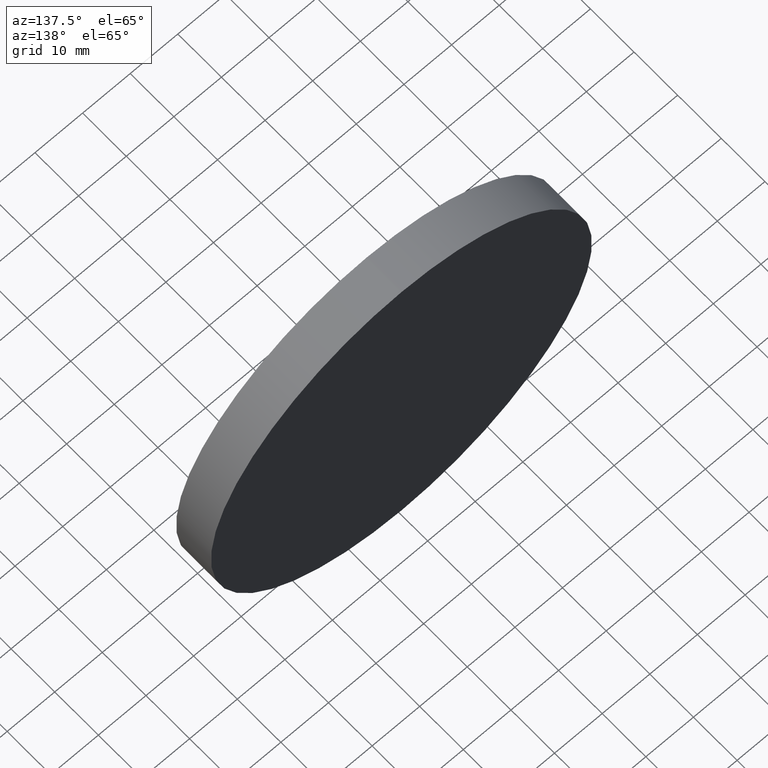
[diagram: clean part render]
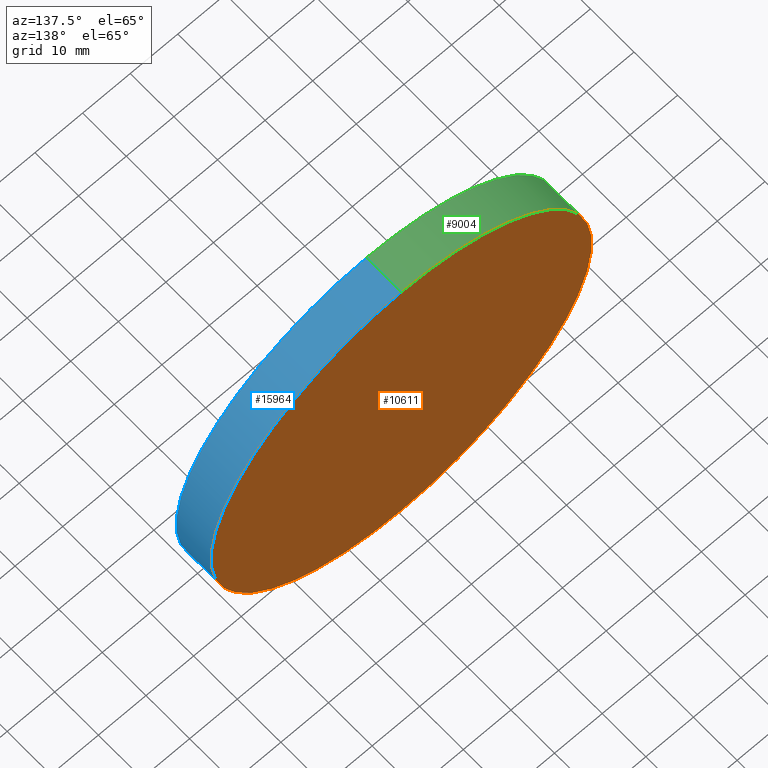
[diagram: same view with three faces highlighted in distinct colors, each labeled with its STEP entity id]
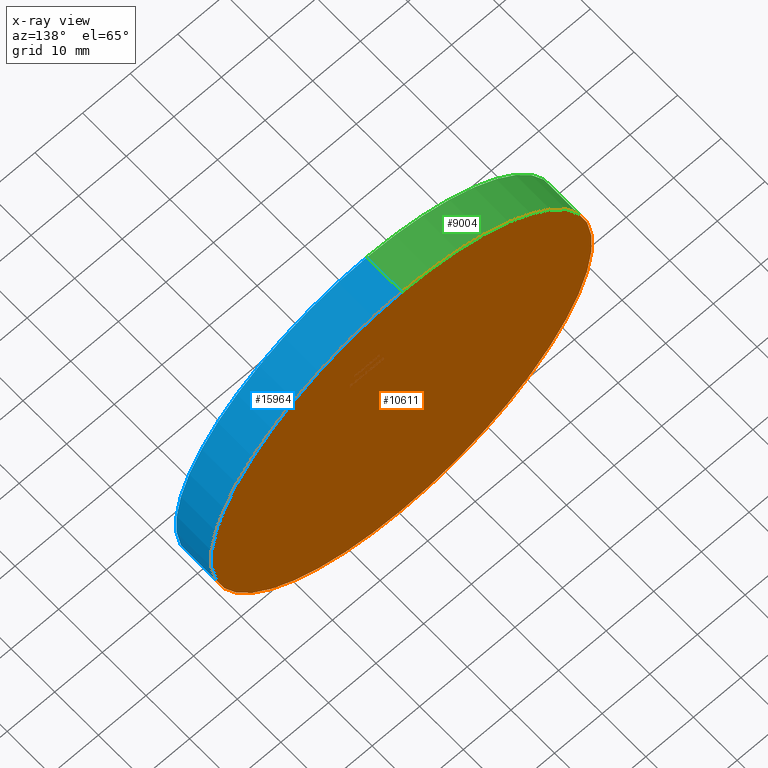
[diagram: x-ray of the same camera — body ghosted, the three highlighted faces saturated]
A machine part, auxiliary view with three faces highlighted in distinct colors.
The next image is the same camera in x-ray (body ghosted, the three faces saturated) — at least one of them is partly hidden behind the body in this view.
Their STEP definitions:

[orange] entity #10611 — the highlighted planar face has unit normal (0, 1, 0).
#1633 = AXIS2_PLACEMENT_3D ( 'NONE', #7472, #14192, #15371 ) ;
#2676 = CARTESIAN_POINT ( 'NONE',  ( 4.898587196589413026E-15, 4.000000000000000000, 40.00000000000000000 ) ) ;
#2741 = CIRCLE ( 'NONE', #5869, 40.00000000000000000 ) ;
#2856 = DIRECTION ( 'NONE',  ( 0.000000000000000000, 0.000000000000000000, 1.000000000000000000 ) ) ;
#3975 = EDGE_CURVE ( 'NONE', #10348, #11502, #15771, .T. ) ;
#4949 = PLANE ( 'NONE',  #12111 ) ;
#5392 = CARTESIAN_POINT ( 'NONE',  ( 0.000000000000000000, 4.000000000000000000, 0.000000000000000000 ) ) ;
#5746 = EDGE_CURVE ( 'NONE', #11502, #10348, #2741, .T. ) ;
#5869 = AXIS2_PLACEMENT_3D ( 'NONE', #5392, #11830, #2856 ) ;
#6704 = CARTESIAN_POINT ( 'NONE',  ( 0.000000000000000000, 4.000000000000000000, -40.00000000000000000 ) ) ;
#7472 = CARTESIAN_POINT ( 'NONE',  ( 0.000000000000000000, 4.000000000000000000, 0.000000000000000000 ) ) ;
#8308 = ORIENTED_EDGE ( 'NONE', *, *, #5746, .T. ) ;
#8626 = EDGE_LOOP ( 'NONE', ( #8682, #8308 ) ) ;
#8682 = ORIENTED_EDGE ( 'NONE', *, *, #3975, .T. ) ;
#10348 = VERTEX_POINT ( 'NONE', #6704 ) ;
#10611 = ADVANCED_FACE ( 'NONE', ( #10777 ), #4949, .T. ) ;
#10777 = FACE_OUTER_BOUND ( 'NONE', #8626, .T. ) ;
#11317 = DIRECTION ( 'NONE',  ( 0.000000000000000000, -0.000000000000000000, 1.000000000000000000 ) ) ;
#11502 = VERTEX_POINT ( 'NONE', #2676 ) ;
#11830 = DIRECTION ( 'NONE',  ( 0.000000000000000000, 1.000000000000000000, 0.000000000000000000 ) ) ;
#12111 = AXIS2_PLACEMENT_3D ( 'NONE', #12585, #14052, #11317 ) ;
#12585 = CARTESIAN_POINT ( 'NONE',  ( 0.000000000000000000, 4.000000000000000000, 0.000000000000000000 ) ) ;
#14052 = DIRECTION ( 'NONE',  ( 0.000000000000000000, 1.000000000000000000, 0.000000000000000000 ) ) ;
#14192 = DIRECTION ( 'NONE',  ( 0.000000000000000000, 1.000000000000000000, 0.000000000000000000 ) ) ;
#15371 = DIRECTION ( 'NONE',  ( 0.000000000000000000, 0.000000000000000000, 1.000000000000000000 ) ) ;
#15771 = CIRCLE ( 'NONE', #1633, 40.00000000000000000 ) ;

[blue] entity #15964 — the highlighted cylindrical surface (partial cylindrical patch) has radius 40 mm, axis along (-0, -1, -0).
#258 = DIRECTION ( 'NONE',  ( 0.000000000000000000, 0.000000000000000000, 1.000000000000000000 ) ) ;
#659 = CARTESIAN_POINT ( 'NONE',  ( 4.898587196589413026E-15, 4.000000000000000000, 40.00000000000000000 ) ) ;
#917 = VERTEX_POINT ( 'NONE', #1191 ) ;
#1191 = CARTESIAN_POINT ( 'NONE',  ( 0.000000000000000000, -4.000000000000000000, -40.00000000000000000 ) ) ;
#1212 = AXIS2_PLACEMENT_3D ( 'NONE', #5560, #14672, #258 ) ;
#2293 = EDGE_CURVE ( 'NONE', #10348, #917, #14518, .T. ) ;
#2676 = CARTESIAN_POINT ( 'NONE',  ( 4.898587196589413026E-15, 4.000000000000000000, 40.00000000000000000 ) ) ;
#2741 = CIRCLE ( 'NONE', #5869, 40.00000000000000000 ) ;
#2856 = DIRECTION ( 'NONE',  ( 0.000000000000000000, 0.000000000000000000, 1.000000000000000000 ) ) ;
#3399 = FACE_OUTER_BOUND ( 'NONE', #11378, .T. ) ;
#5392 = CARTESIAN_POINT ( 'NONE',  ( 0.000000000000000000, 4.000000000000000000, 0.000000000000000000 ) ) ;
#5560 = CARTESIAN_POINT ( 'NONE',  ( 0.000000000000000000, -4.000000000000000000, 0.000000000000000000 ) ) ;
#5658 = VERTEX_POINT ( 'NONE', #6899 ) ;
#5746 = EDGE_CURVE ( 'NONE', #11502, #10348, #2741, .T. ) ;
#5752 = VECTOR ( 'NONE', #13252, 1000.000000000000000 ) ;
#5846 = EDGE_CURVE ( 'NONE', #11502, #5658, #16118, .T. ) ;
#5869 = AXIS2_PLACEMENT_3D ( 'NONE', #5392, #11830, #2856 ) ;
#6704 = CARTESIAN_POINT ( 'NONE',  ( 0.000000000000000000, 4.000000000000000000, -40.00000000000000000 ) ) ;
#6899 = CARTESIAN_POINT ( 'NONE',  ( 4.898587196589413026E-15, -4.000000000000000000, 40.00000000000000000 ) ) ;
#6997 = CARTESIAN_POINT ( 'NONE',  ( 0.000000000000000000, 4.000000000000000000, 0.000000000000000000 ) ) ;
#7200 = ORIENTED_EDGE ( 'NONE', *, *, #5746, .F. ) ;
#7936 = ORIENTED_EDGE ( 'NONE', *, *, #15436, .T. ) ;
#8320 = DIRECTION ( 'NONE',  ( 0.000000000000000000, 0.000000000000000000, -1.000000000000000000 ) ) ;
#9307 = CIRCLE ( 'NONE', #1212, 40.00000000000000000 ) ;
#10348 = VERTEX_POINT ( 'NONE', #6704 ) ;
#11378 = EDGE_LOOP ( 'NONE', ( #7200, #11980, #7936, #15791 ) ) ;
#11502 = VERTEX_POINT ( 'NONE', #2676 ) ;
#11830 = DIRECTION ( 'NONE',  ( 0.000000000000000000, 1.000000000000000000, 0.000000000000000000 ) ) ;
#11928 = CARTESIAN_POINT ( 'NONE',  ( 0.000000000000000000, 4.000000000000000000, -40.00000000000000000 ) ) ;
#11980 = ORIENTED_EDGE ( 'NONE', *, *, #5846, .T. ) ;
#12633 = DIRECTION ( 'NONE',  ( -0.000000000000000000, -1.000000000000000000, -0.000000000000000000 ) ) ;
#12702 = VECTOR ( 'NONE', #13822, 1000.000000000000000 ) ;
#13252 = DIRECTION ( 'NONE',  ( -0.000000000000000000, -1.000000000000000000, -0.000000000000000000 ) ) ;
#13822 = DIRECTION ( 'NONE',  ( -0.000000000000000000, -1.000000000000000000, -0.000000000000000000 ) ) ;
#14518 = LINE ( 'NONE', #11928, #5752 ) ;
#14672 = DIRECTION ( 'NONE',  ( 0.000000000000000000, 1.000000000000000000, 0.000000000000000000 ) ) ;
#15436 = EDGE_CURVE ( 'NONE', #5658, #917, #9307, .T. ) ;
#15791 = ORIENTED_EDGE ( 'NONE', *, *, #2293, .F. ) ;
#15964 = ADVANCED_FACE ( 'NONE', ( #3399 ), #16795, .T. ) ;
#16118 = LINE ( 'NONE', #659, #12702 ) ;
#16236 = AXIS2_PLACEMENT_3D ( 'NONE', #6997, #12633, #8320 ) ;
#16795 = CYLINDRICAL_SURFACE ( 'NONE', #16236, 40.00000000000000000 ) ;

[green] entity #9004 — the highlighted cylindrical surface (partial cylindrical patch) has radius 40 mm, axis along (-0, -1, -0).
#180 = EDGE_LOOP ( 'NONE', ( #15243, #7408, #9407, #4481 ) ) ;
#659 = CARTESIAN_POINT ( 'NONE',  ( 4.898587196589413026E-15, 4.000000000000000000, 40.00000000000000000 ) ) ;
#917 = VERTEX_POINT ( 'NONE', #1191 ) ;
#1191 = CARTESIAN_POINT ( 'NONE',  ( 0.000000000000000000, -4.000000000000000000, -40.00000000000000000 ) ) ;
#1621 = DIRECTION ( 'NONE',  ( -0.000000000000000000, -1.000000000000000000, -0.000000000000000000 ) ) ;
#1633 = AXIS2_PLACEMENT_3D ( 'NONE', #7472, #14192, #15371 ) ;
#2293 = EDGE_CURVE ( 'NONE', #10348, #917, #14518, .T. ) ;
#2676 = CARTESIAN_POINT ( 'NONE',  ( 4.898587196589413026E-15, 4.000000000000000000, 40.00000000000000000 ) ) ;
#2953 = AXIS2_PLACEMENT_3D ( 'NONE', #13332, #1621, #8229 ) ;
#3975 = EDGE_CURVE ( 'NONE', #10348, #11502, #15771, .T. ) ;
#4480 = AXIS2_PLACEMENT_3D ( 'NONE', #14843, #16114, #13538 ) ;
#4481 = ORIENTED_EDGE ( 'NONE', *, *, #10938, .T. ) ;
#5501 = CIRCLE ( 'NONE', #4480, 40.00000000000000000 ) ;
#5658 = VERTEX_POINT ( 'NONE', #6899 ) ;
#5752 = VECTOR ( 'NONE', #13252, 1000.000000000000000 ) ;
#5846 = EDGE_CURVE ( 'NONE', #11502, #5658, #16118, .T. ) ;
#6704 = CARTESIAN_POINT ( 'NONE',  ( 0.000000000000000000, 4.000000000000000000, -40.00000000000000000 ) ) ;
#6899 = CARTESIAN_POINT ( 'NONE',  ( 4.898587196589413026E-15, -4.000000000000000000, 40.00000000000000000 ) ) ;
#7408 = ORIENTED_EDGE ( 'NONE', *, *, #3975, .F. ) ;
#7472 = CARTESIAN_POINT ( 'NONE',  ( 0.000000000000000000, 4.000000000000000000, 0.000000000000000000 ) ) ;
#7558 = CYLINDRICAL_SURFACE ( 'NONE', #2953, 40.00000000000000000 ) ;
#8229 = DIRECTION ( 'NONE',  ( 0.000000000000000000, 0.000000000000000000, -1.000000000000000000 ) ) ;
#8604 = FACE_OUTER_BOUND ( 'NONE', #180, .T. ) ;
#9004 = ADVANCED_FACE ( 'NONE', ( #8604 ), #7558, .T. ) ;
#9407 = ORIENTED_EDGE ( 'NONE', *, *, #2293, .T. ) ;
#10348 = VERTEX_POINT ( 'NONE', #6704 ) ;
#10938 = EDGE_CURVE ( 'NONE', #917, #5658, #5501, .T. ) ;
#11502 = VERTEX_POINT ( 'NONE', #2676 ) ;
#11928 = CARTESIAN_POINT ( 'NONE',  ( 0.000000000000000000, 4.000000000000000000, -40.00000000000000000 ) ) ;
#12702 = VECTOR ( 'NONE', #13822, 1000.000000000000000 ) ;
#13252 = DIRECTION ( 'NONE',  ( -0.000000000000000000, -1.000000000000000000, -0.000000000000000000 ) ) ;
#13332 = CARTESIAN_POINT ( 'NONE',  ( 0.000000000000000000, 4.000000000000000000, 0.000000000000000000 ) ) ;
#13538 = DIRECTION ( 'NONE',  ( 0.000000000000000000, 0.000000000000000000, 1.000000000000000000 ) ) ;
#13822 = DIRECTION ( 'NONE',  ( -0.000000000000000000, -1.000000000000000000, -0.000000000000000000 ) ) ;
#14192 = DIRECTION ( 'NONE',  ( 0.000000000000000000, 1.000000000000000000, 0.000000000000000000 ) ) ;
#14518 = LINE ( 'NONE', #11928, #5752 ) ;
#14843 = CARTESIAN_POINT ( 'NONE',  ( 0.000000000000000000, -4.000000000000000000, 0.000000000000000000 ) ) ;
#15243 = ORIENTED_EDGE ( 'NONE', *, *, #5846, .F. ) ;
#15371 = DIRECTION ( 'NONE',  ( 0.000000000000000000, 0.000000000000000000, 1.000000000000000000 ) ) ;
#15771 = CIRCLE ( 'NONE', #1633, 40.00000000000000000 ) ;
#16114 = DIRECTION ( 'NONE',  ( 0.000000000000000000, 1.000000000000000000, 0.000000000000000000 ) ) ;
#16118 = LINE ( 'NONE', #659, #12702 ) ;